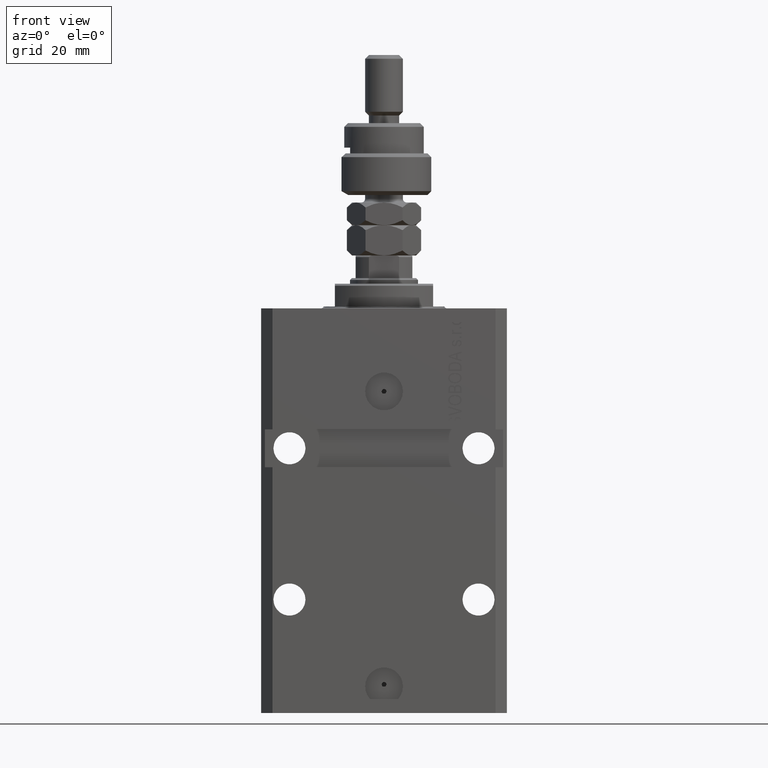
[diagram: clean part render]
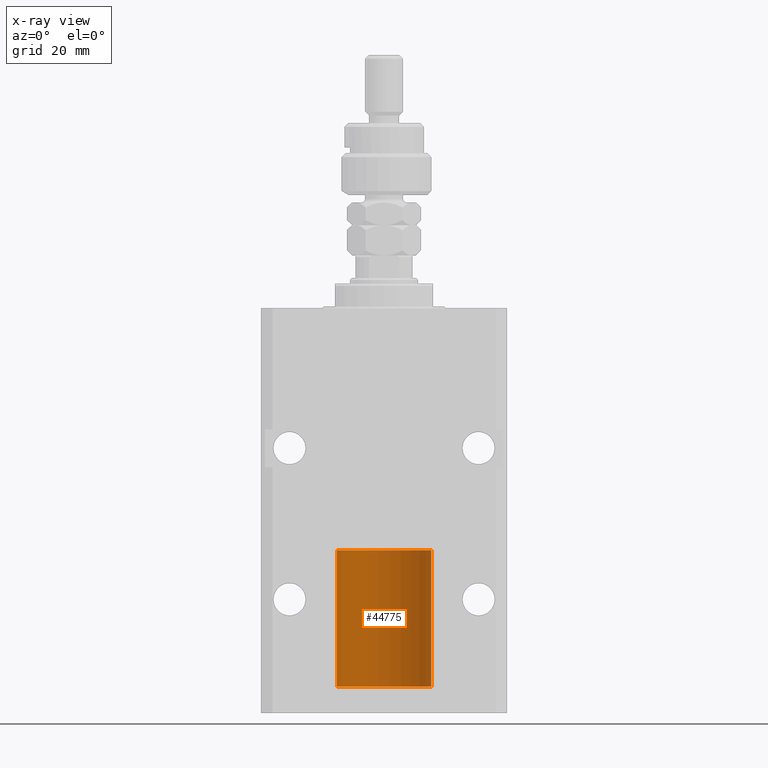
[diagram: x-ray — body ghosted, one internal face saturated and labeled with its STEP entity id]
A machine part, front view, then the same camera in x-ray: the body is ghosted and one INTERNAL B-rep face — a face not visible from any outside direction — is saturated and labeled: STEP entity #44775.
In plain terms, the highlighted cylindrical surface (partial cylindrical patch) has radius 12.5 mm, axis along (-0, -0, -1).
Its self-contained STEP definition (entity closure, byte-faithful):
#939 = LINE ( 'NONE', #28817, #5356 ) ;
#2359 = EDGE_CURVE ( 'NONE', #20725, #16166, #13304, .T. ) ;
#3962 = EDGE_CURVE ( 'NONE', #34474, #34048, #939, .T. ) ;
#4114 = DIRECTION ( 'NONE',  ( 0.000000000000000000, 0.000000000000000000, 1.000000000000000000 ) ) ;
#5356 = VECTOR ( 'NONE', #25201, 1000.000000000000000 ) ;
#6427 = FACE_OUTER_BOUND ( 'NONE', #32791, .T. ) ;
#7738 = DIRECTION ( 'NONE',  ( 1.000000000000000000, 0.000000000000000000, 0.000000000000000000 ) ) ;
#8465 = ORIENTED_EDGE ( 'NONE', *, *, #33658, .F. ) ;
#12874 = DIRECTION ( 'NONE',  ( 0.000000000000000000, 0.000000000000000000, 1.000000000000000000 ) ) ;
#13002 = CIRCLE ( 'NONE', #50925, 12.50000000000000000 ) ;
#13304 = LINE ( 'NONE', #21570, #13522 ) ;
#13522 = VECTOR ( 'NONE', #33430, 1000.000000000000000 ) ;
#13970 = AXIS2_PLACEMENT_3D ( 'NONE', #31228, #4114, #7738 ) ;
#16166 = VERTEX_POINT ( 'NONE', #21529 ) ;
#16752 = CARTESIAN_POINT ( 'NONE',  ( 0.000000000000000000, 0.000000000000000000, 36.10000000000000142 ) ) ;
#17254 = DIRECTION ( 'NONE',  ( 1.000000000000000000, 0.000000000000000000, 0.000000000000000000 ) ) ;
#19224 = ORIENTED_EDGE ( 'NONE', *, *, #3962, .F. ) ;
#20725 = VERTEX_POINT ( 'NONE', #47530 ) ;
#21085 = EDGE_CURVE ( 'NONE', #16166, #34048, #50267, .T. ) ;
#21529 = CARTESIAN_POINT ( 'NONE',  ( 12.50000000000000000, 1.530808498934191521E-15, 0.000000000000000000 ) ) ;
#21570 = CARTESIAN_POINT ( 'NONE',  ( 12.50000000000000000, 1.530808498934191521E-15, 36.10000000000000142 ) ) ;
#25201 = DIRECTION ( 'NONE',  ( -0.000000000000000000, -0.000000000000000000, -1.000000000000000000 ) ) ;
#26220 = CARTESIAN_POINT ( 'NONE',  ( -12.50000000000000000, 0.000000000000000000, 0.000000000000000000 ) ) ;
#27765 = ORIENTED_EDGE ( 'NONE', *, *, #2359, .T. ) ;
#28817 = CARTESIAN_POINT ( 'NONE',  ( -12.50000000000000000, 0.000000000000000000, 36.10000000000000142 ) ) ;
#28910 = CYLINDRICAL_SURFACE ( 'NONE', #30732, 12.50000000000000000 ) ;
#30732 = AXIS2_PLACEMENT_3D ( 'NONE', #33284, #33536, #49281 ) ;
#31228 = CARTESIAN_POINT ( 'NONE',  ( 0.000000000000000000, 0.000000000000000000, 0.000000000000000000 ) ) ;
#32791 = EDGE_LOOP ( 'NONE', ( #8465, #27765, #37818, #19224 ) ) ;
#33284 = CARTESIAN_POINT ( 'NONE',  ( 0.000000000000000000, 0.000000000000000000, 36.10000000000000142 ) ) ;
#33430 = DIRECTION ( 'NONE',  ( -0.000000000000000000, -0.000000000000000000, -1.000000000000000000 ) ) ;
#33536 = DIRECTION ( 'NONE',  ( -0.000000000000000000, -0.000000000000000000, -1.000000000000000000 ) ) ;
#33658 = EDGE_CURVE ( 'NONE', #20725, #34474, #13002, .T. ) ;
#34048 = VERTEX_POINT ( 'NONE', #26220 ) ;
#34474 = VERTEX_POINT ( 'NONE', #46980 ) ;
#37818 = ORIENTED_EDGE ( 'NONE', *, *, #21085, .T. ) ;
#44775 = ADVANCED_FACE ( 'NONE', ( #6427 ), #28910, .T. ) ;
#46980 = CARTESIAN_POINT ( 'NONE',  ( -12.50000000000000000, 0.000000000000000000, 36.10000000000000142 ) ) ;
#47530 = CARTESIAN_POINT ( 'NONE',  ( 12.50000000000000000, 1.530808498934191521E-15, 36.10000000000000142 ) ) ;
#49281 = DIRECTION ( 'NONE',  ( -1.000000000000000000, 0.000000000000000000, 0.000000000000000000 ) ) ;
#50267 = CIRCLE ( 'NONE', #13970, 12.50000000000000000 ) ;
#50925 = AXIS2_PLACEMENT_3D ( 'NONE', #16752, #12874, #17254 ) ;